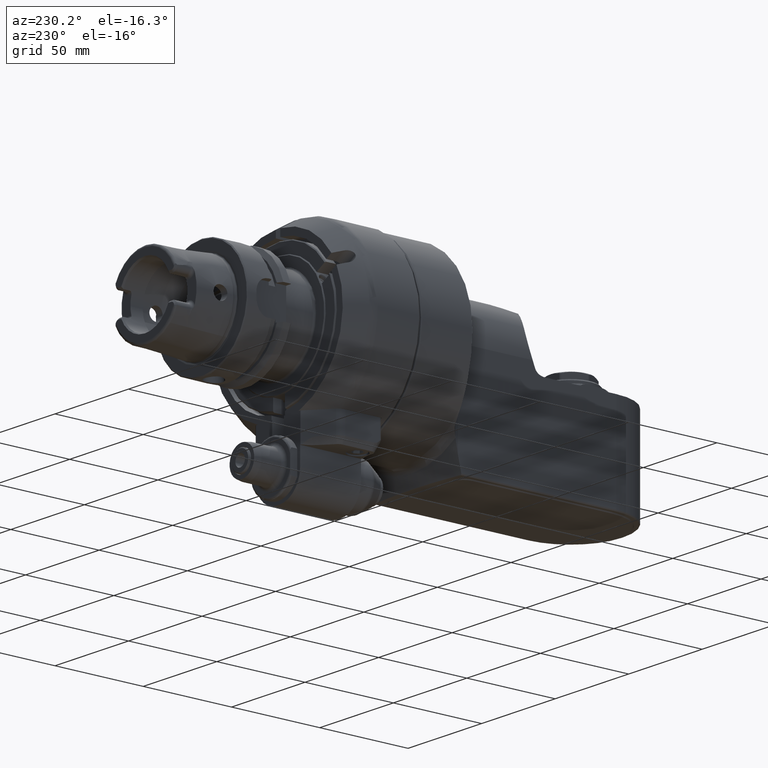
[diagram: clean part render]
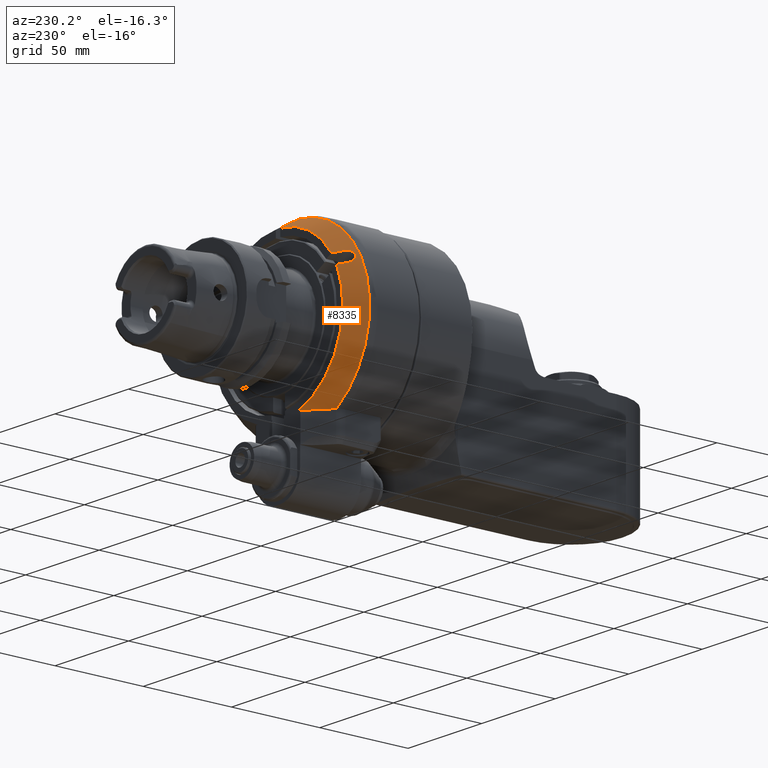
[diagram: same view with one face highlighted and labeled with its STEP entity id]
A machine part, auxiliary view. The second image highlights one B-rep face of the part: STEP entity #8335.
In plain terms, the highlighted conical surface has half-angle 30 deg.
Its self-contained STEP definition (entity closure, byte-faithful):
#59=(
BOUNDED_CURVE()
B_SPLINE_CURVE(2,(#12994,#12995,#12996),.UNSPECIFIED.,.F.,.F.)
B_SPLINE_CURVE_WITH_KNOTS((3,3),(-2.43290769105801,-0.320305328668483),
 .UNSPECIFIED.)
CURVE()
GEOMETRIC_REPRESENTATION_ITEM()
RATIONAL_B_SPLINE_CURVE((1.03252076511009,1.03062027413364,1.00749895945509))
REPRESENTATION_ITEM('')
);
#192=B_SPLINE_CURVE_WITH_KNOTS('',3,(#13117,#13118,#13119,#13120,#13121,
#13122,#13123,#13124,#13125,#13126),.UNSPECIFIED.,.F.,.F.,(4,3,3,4),(0.,
0.3333333333333,0.6666666666667,1.),.UNSPECIFIED.);
#195=B_SPLINE_CURVE_WITH_KNOTS('',3,(#13179,#13180,#13181,#13182,#13183,
#13184,#13185,#13186,#13187,#13188,#13189,#13190,#13191,#13192,#13193,#13194,
#13195,#13196),.UNSPECIFIED.,.F.,.F.,(4,2,2,2,2,2,2,2,4),(1.11206982951625,
1.24885677734264,1.4029266724495,1.5444028479349,1.68587902342029,1.82735519890569,
1.96883137439109,2.12290126949794,2.25968821732541),.UNSPECIFIED.);
#197=B_SPLINE_CURVE_WITH_KNOTS('',3,(#13218,#13219,#13220,#13221,#13222,
#13223,#13224,#13225,#13226,#13227),.UNSPECIFIED.,.F.,.F.,(4,3,3,4),(0.,
0.3333333333333,0.6666666666667,1.),.UNSPECIFIED.);
#198=B_SPLINE_CURVE_WITH_KNOTS('',3,(#13233,#13234,#13235,#13236,#13237,
#13238,#13239,#13240,#13241,#13242),.UNSPECIFIED.,.F.,.F.,(4,3,3,4),(0.,
0.3333333333333,0.6666666666667,1.),.UNSPECIFIED.);
#661=CONICAL_SURFACE('',#9015,46.96410161514,0.523598775598299);
#850=FACE_OUTER_BOUND('',#1356,.T.);
#1356=EDGE_LOOP('',(#6145,#6146,#6147,#6148,#6149,#6150,#6151,#6152));
#3040=CIRCLE('',#9016,49.92820323028);
#3041=CIRCLE('',#9017,44.);
#3042=CIRCLE('',#9018,44.);
#3548=VERTEX_POINT('',#12982);
#3549=VERTEX_POINT('',#12993);
#3571=VERTEX_POINT('',#13114);
#3572=VERTEX_POINT('',#13116);
#3585=VERTEX_POINT('',#13177);
#3586=VERTEX_POINT('',#13178);
#3590=VERTEX_POINT('',#13217);
#3591=VERTEX_POINT('',#13231);
#4504=EDGE_CURVE('',#3548,#3549,#59,.T.);
#4532=EDGE_CURVE('',#3572,#3571,#192,.T.);
#4550=EDGE_CURVE('',#3585,#3586,#195,.F.);
#4557=EDGE_CURVE('',#3585,#3590,#197,.T.);
#4559=EDGE_CURVE('',#3572,#3548,#3040,.T.);
#4560=EDGE_CURVE('',#3591,#3571,#3041,.T.);
#4561=EDGE_CURVE('',#3591,#3586,#198,.T.);
#4562=EDGE_CURVE('',#3549,#3590,#3042,.T.);
#6145=ORIENTED_EDGE('',*,*,#4559,.F.);
#6146=ORIENTED_EDGE('',*,*,#4532,.T.);
#6147=ORIENTED_EDGE('',*,*,#4560,.F.);
#6148=ORIENTED_EDGE('',*,*,#4561,.T.);
#6149=ORIENTED_EDGE('',*,*,#4550,.F.);
#6150=ORIENTED_EDGE('',*,*,#4557,.T.);
#6151=ORIENTED_EDGE('',*,*,#4562,.F.);
#6152=ORIENTED_EDGE('',*,*,#4504,.F.);
#8335=ADVANCED_FACE('',(#850),#661,.T.);
#9015=AXIS2_PLACEMENT_3D('',#13229,#10373,#10374);
#9016=AXIS2_PLACEMENT_3D('',#13230,#10375,#10376);
#9017=AXIS2_PLACEMENT_3D('',#13232,#10377,#10378);
#9018=AXIS2_PLACEMENT_3D('',#13243,#10379,#10380);
#10373=DIRECTION('center_axis',(0.,-1.,0.));
#10374=DIRECTION('ref_axis',(0.,0.,1.));
#10375=DIRECTION('center_axis',(0.,-1.,0.));
#10376=DIRECTION('ref_axis',(-0.0300431400080999,0.,0.999548602989596));
#10377=DIRECTION('center_axis',(0.,1.,0.));
#10378=DIRECTION('ref_axis',(-0.823508449688707,0.,0.567304004296905));
#10379=DIRECTION('center_axis',(0.,1.,0.));
#10380=DIRECTION('ref_axis',(-0.315686235979311,0.,-0.948863636363632));
#12982=CARTESIAN_POINT('',(-27.38180011986,29.23205080757,-41.75));
#12993=CARTESIAN_POINT('',(-13.89019438316,39.5,-41.74999999999));
#12994=CARTESIAN_POINT('Ctrl Pts',(-27.3818001198562,29.2320508075673,-41.75));
#12995=CARTESIAN_POINT('Ctrl Pts',(-20.2102413126131,36.0442956678564,-41.75));
#12996=CARTESIAN_POINT('Ctrl Pts',(-13.8901943831554,39.4999999999632,-41.75));
#13114=CARTESIAN_POINT('',(-1.5,39.5,43.97442438509));
#13116=CARTESIAN_POINT('',(-1.50000007595379,29.2320595617708,49.9056607292726));
#13117=CARTESIAN_POINT('Ctrl Pts',(-1.5,29.23206831446,49.90565567486));
#13118=CARTESIAN_POINT('Ctrl Pts',(-1.5,30.37293045262,49.24668115316));
#13119=CARTESIAN_POINT('Ctrl Pts',(-1.5,31.5138242319948,48.5876765558151));
#13120=CARTESIAN_POINT('Ctrl Pts',(-1.5,32.6547122553555,47.928662020786));
#13121=CARTESIAN_POINT('Ctrl Pts',(-1.5,33.7956002787165,47.2696474857567));
#13122=CARTESIAN_POINT('Ctrl Pts',(-1.5,34.9364825460635,46.6106230130433));
#13123=CARTESIAN_POINT('Ctrl Pts',(-1.5,36.077363540237,45.9515842405615));
#13124=CARTESIAN_POINT('Ctrl Pts',(-1.5,37.2182445344102,45.2925454680799));
#13125=CARTESIAN_POINT('Ctrl Pts',(-1.5,38.35912425541,44.63349239583));
#13126=CARTESIAN_POINT('Ctrl Pts',(-1.5,39.5,43.97442438509));
#13177=CARTESIAN_POINT('',(-42.24182743261,34.5,20.34687855495));
#13178=CARTESIAN_POINT('',(-38.74182743261,34.5,26.40905638145));
#13179=CARTESIAN_POINT('Ctrl Pts',(-38.7418274326129,34.5000000000002,26.4090563814456));
#13180=CARTESIAN_POINT('Ctrl Pts',(-38.9427838572518,34.0992085079157,26.5250786273062));
#13181=CARTESIAN_POINT('Ctrl Pts',(-39.1945532832522,33.6780271021362,26.5877455833705));
#13182=CARTESIAN_POINT('Ctrl Pts',(-39.7934207779667,32.8336229766582,26.5711996809164));
#13183=CARTESIAN_POINT('Ctrl Pts',(-40.1489075806805,32.416786404141,26.4721822625297));
#13184=CARTESIAN_POINT('Ctrl Pts',(-40.8117265913294,31.7689100689263,26.1383338430384));
#13185=CARTESIAN_POINT('Ctrl Pts',(-41.1623315039927,31.4858969585476,25.8928265156274));
#13186=CARTESIAN_POINT('Ctrl Pts',(-41.8163473322267,31.1011571537054,25.2551263794943));
#13187=CARTESIAN_POINT('Ctrl Pts',(-42.1193241407055,31.,24.8621451840586));
#13188=CARTESIAN_POINT('Ctrl Pts',(-42.5909113923235,31.,24.0453321040545));
#13189=CARTESIAN_POINT('Ctrl Pts',(-42.779754686541,31.1011571537054,23.5864558934365));
#13190=CARTESIAN_POINT('Ctrl Pts',(-43.0050112903121,31.4858969585476,22.7012115036422));
#13191=CARTESIAN_POINT('Ctrl Pts',(-43.0423244163336,31.7689100689263,22.2748250788787));
#13192=CARTESIAN_POINT('Ctrl Pts',(-43.000036123302,32.416786404141,21.5338827677997));
#13193=CARTESIAN_POINT('Ctrl Pts',(-42.908044321685,32.8336229766582,21.1765134567462));
#13194=CARTESIAN_POINT('Ctrl Pts',(-42.6229397461805,33.6780271021394,20.6496060415937));
#13195=CARTESIAN_POINT('Ctrl Pts',(-42.4427838572491,34.0992085079223,20.4629008008123));
#13196=CARTESIAN_POINT('Ctrl Pts',(-42.2418274326083,34.5000000000096,20.3468785549518));
#13217=CARTESIAN_POINT('',(-39.7343717863,39.5,18.89919836257));
#13218=CARTESIAN_POINT('Ctrl Pts',(-42.2418274326133,34.5000000000021,20.3468785549516));
#13219=CARTESIAN_POINT('Ctrl Pts',(-41.9632683989681,35.0555636796788,20.1860524218991));
#13220=CARTESIAN_POINT('Ctrl Pts',(-41.6846944543344,35.6111251834313,20.0252176577258));
#13221=CARTESIAN_POINT('Ctrl Pts',(-41.4061048113106,36.1666839961781,19.864373839952));
#13222=CARTESIAN_POINT('Ctrl Pts',(-41.1275151682867,36.7222428089251,19.7035300221781));
#13223=CARTESIAN_POINT('Ctrl Pts',(-40.8489098273047,37.2777989309903,19.5426771511998));
#13224=CARTESIAN_POINT('Ctrl Pts',(-40.5702879469552,37.8333517949414,19.381814745264));
#13225=CARTESIAN_POINT('Ctrl Pts',(-40.2916660666057,38.3889046588924,19.2209523393283));
#13226=CARTESIAN_POINT('Ctrl Pts',(-40.0130276473512,38.9444542651007,19.0600803989606));
#13227=CARTESIAN_POINT('Ctrl Pts',(-39.7343717863022,39.5000000000014,18.8991983625711));
#13229=CARTESIAN_POINT('Origin',(0.,34.36602540378,0.));
#13230=CARTESIAN_POINT('Origin',(0.,29.23205080757,0.));
#13231=CARTESIAN_POINT('',(-36.2343717863,39.5,24.96137618907));
#13232=CARTESIAN_POINT('Origin',(0.,39.5,0.));
#13233=CARTESIAN_POINT('Ctrl Pts',(-36.2343717862992,39.4999999999995,24.9613761890695));
#13234=CARTESIAN_POINT('Ctrl Pts',(-36.5130276473516,38.9444542651011,25.1222582254511));
#13235=CARTESIAN_POINT('Ctrl Pts',(-36.7916660440905,38.3889046588926,25.2831302048165));
#13236=CARTESIAN_POINT('Ctrl Pts',(-37.070287914319,37.8333517949412,25.4439926282826));
#13237=CARTESIAN_POINT('Ctrl Pts',(-37.3489097845476,37.2777989309897,25.6048550517487));
#13238=CARTESIAN_POINT('Ctrl Pts',(-37.6275151275794,36.7222428089239,25.7657079191777));
#13239=CARTESIAN_POINT('Ctrl Pts',(-37.9061047813243,36.166683996177,25.9265517183818));
#13240=CARTESIAN_POINT('Ctrl Pts',(-38.1846944350692,35.6111251834304,26.0873955175858));
#13241=CARTESIAN_POINT('Ctrl Pts',(-38.4632683989682,35.0555636796788,26.2482302483888));
#13242=CARTESIAN_POINT('Ctrl Pts',(-38.74182743261,34.5,26.40905638145));
#13243=CARTESIAN_POINT('Origin',(0.,39.5,0.));